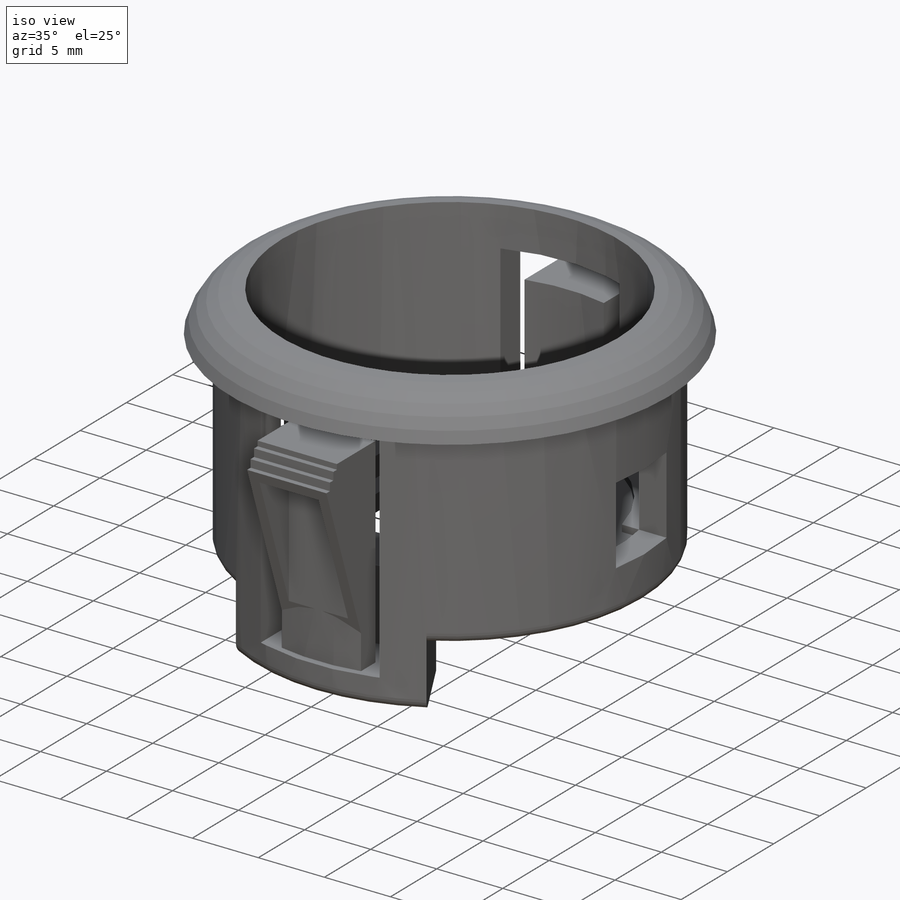
[diagram: iso view]
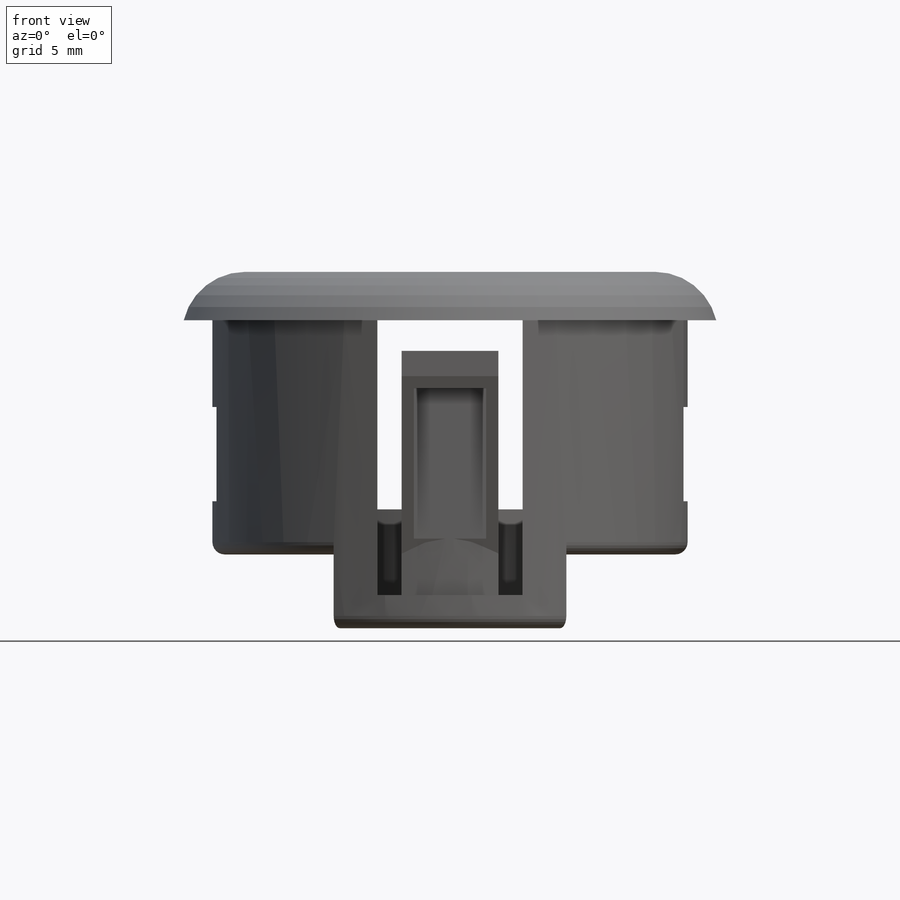
[diagram: front view]
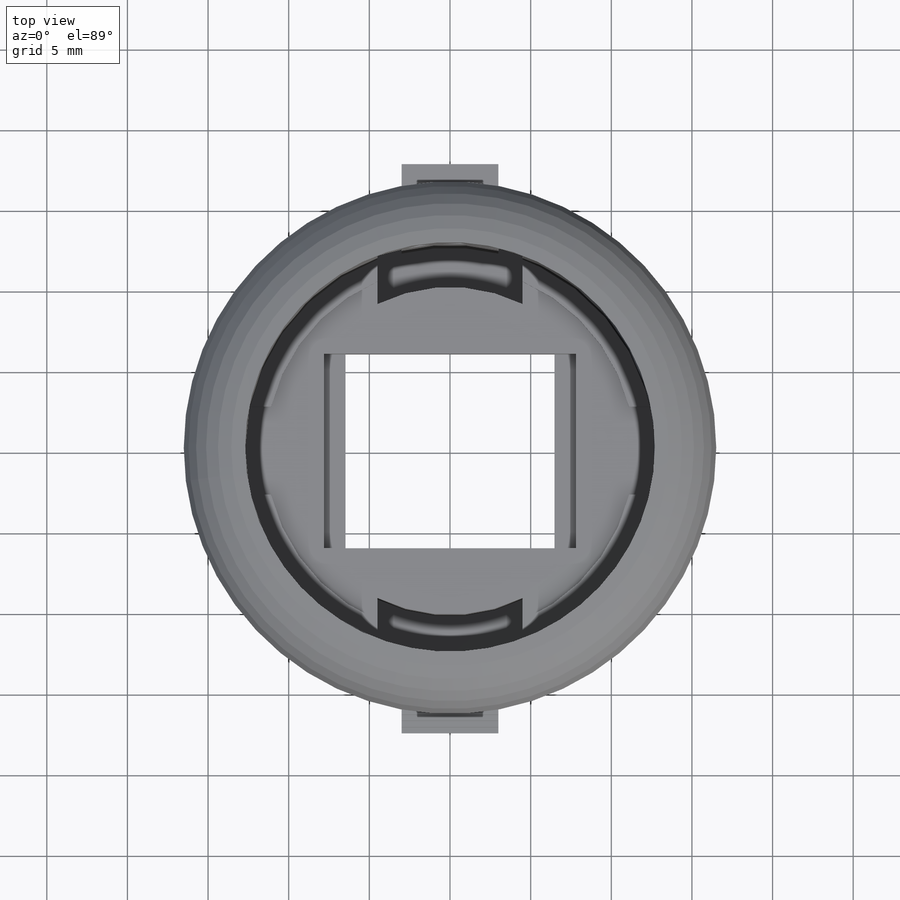
[diagram: top view]
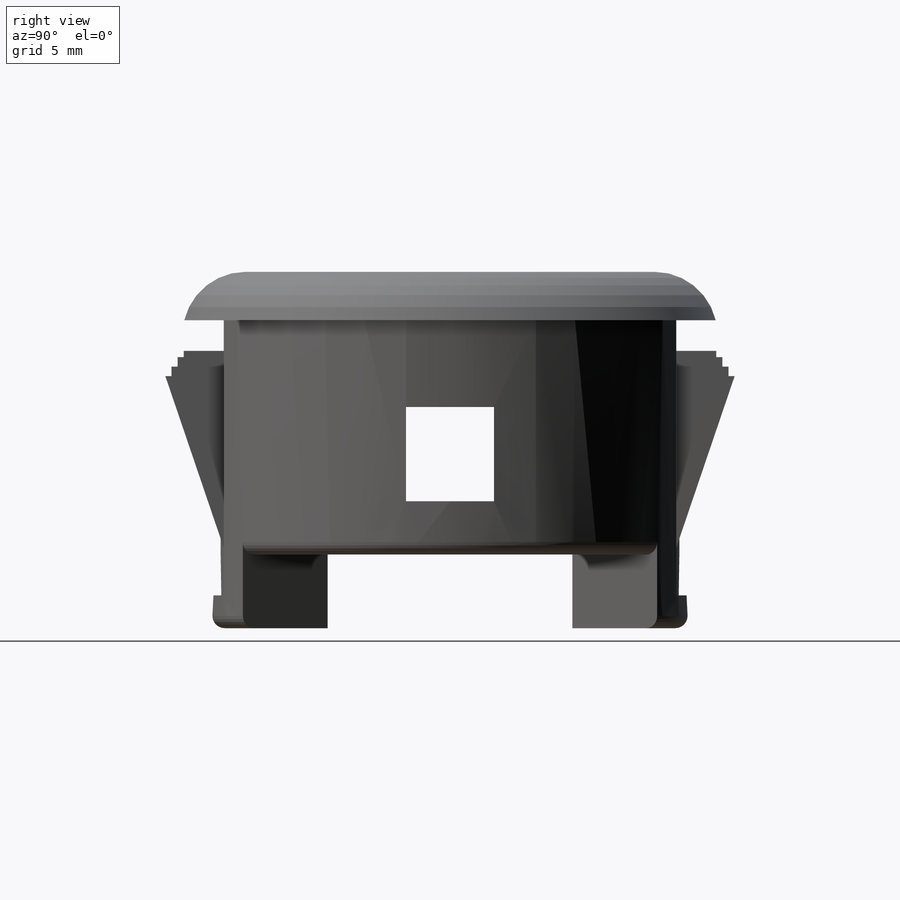
[diagram: right view]
SOLIDWORKS PART (.sldprt)
format: sldprt  version: not decoded by parser v0  size: 452,096 bytes
history: native  units: mm
features: sketch x10, cut_extrude x8, material x1, revolve x1, extrude x1, plane x1, mirror x1, fillet x1 (+11 scaffold rows collapsed)
feature tree (35):
  scaffold x11  (default folders/planes/origin — collapsed)
  material  "Matériau <non spécifié>"
  sketch  "Sketch1"  dims[c1.D1=16.51mm c1.D2=3.0mm c1.D3=17.526mm c1.D4=22.098mm c1.D5=8.6995mm c1.D6=12.7mm c1.D7=14.732mm c1.D8=3.3782mm c1.D9=3.81mm c2.D8=14.224mm]
  revolve  "Revolve1"  Angle=360deg
  sketch  "Sketch3"  dims[c1.D1=14.4272mm c1.D2=29.464mm c2.D2=~27.240016deg]
  cut_extrude  "feet"  [1 undecoded]
  sketch  "Sketch2"  dims[D1=12.065mm D2=12.954mm]
  cut_extrude  "switch hole"  [1 undecoded]
  sketch  "Sketch6"  dims[D1=2.032mm D2=5.842mm D3=5.461mm]
  cut_extrude  "square"  [1 undecoded]
  sketch  "Sketch4"  dims[D1=1.27mm]
  cut_extrude  "Extrude3"  Depth=0.508mm
  sketch  "Sketch5"  dims[D1=15.621mm D2=11.938mm]
  cut_extrude  "switch hole2"  Depth=1.27mm
  sketch  "Sketch7"  dims[c1.D2=~10.161548mm c1.D1=20.32mm c2.D2=0.508mm c2.D3=9.0mm c2.D4=6.0mm c2.D1=0.508mm]
  cut_extrude  "tab circ cutout"  Depth=2.032mm
  sketch  "Sketch9"  dims[D1=1.905mm D2=2.54mm]
  cut_extrude  "tab top"  [1 undecoded]
  sketch  "Sketch10"  dims[D1=0.381mm D2=5.1308mm D3=12.573mm]
  extrude  "tab wedge"  Depth=6mm
  plane  "Plane1"  Offset=0.508mm
  sketch  "Sketch11"  dims[D1=0.762mm]
  cut_extrude  "cut tab"  Depth=3.556mm
  mirror  "tab mirror"
  fillet  "Fillet1"  Radius=0.762mm
decode coverage: 17 of 22 modeling features carry decoded parameters
note: ~ marks probable driven/reference dimensions
note: 4 parameter values undecoded
summary: no parameter record found for 4 features
note: suppression state not decoded; provenance and decode notes live in map.json
